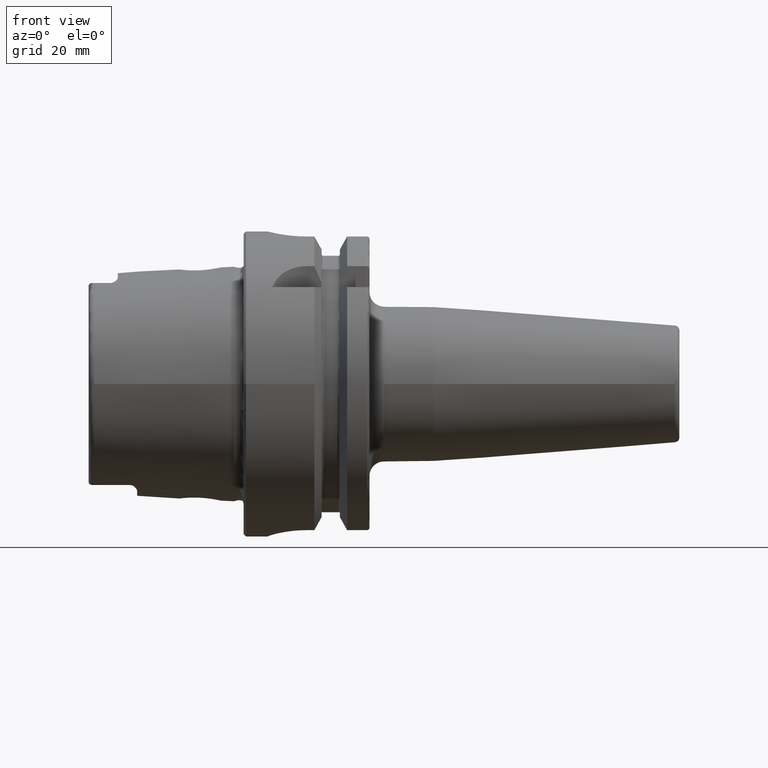
[diagram: clean part render]
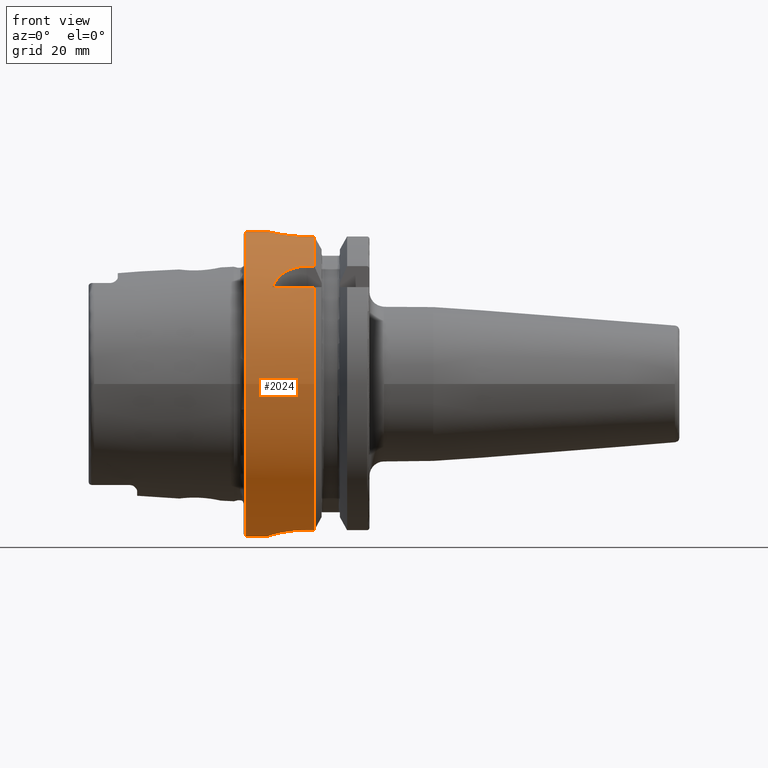
[diagram: same view with one face highlighted and labeled with its STEP entity id]
A machine part, front view. The second image highlights one B-rep face of the part: STEP entity #2024.
In plain terms, the highlighted cylindrical surface (bore or boss wall) has radius 31.5 mm, axis along (1, 0, 0).
Its self-contained STEP definition (entity closure, byte-faithful):
#57=B_SPLINE_CURVE_WITH_KNOTS('',3,(#3738,#3739,#3740,#3741,#3742,#3743,
#3744,#3745,#3746,#3747,#3748,#3749,#3750,#3751,#3752,#3753,#3754,#3755,
#3756,#3757,#3758,#3759,#3760,#3761,#3762,#3763),.UNSPECIFIED.,.F.,.F.,
(4,2,2,2,2,2,2,2,2,2,2,2,4),(0.,0.188688694287612,0.377377388575223,0.56606194688798,
0.754746505200737,0.943431063513494,1.13211562182625,1.32080431611386,1.50949301040147,
1.69818170468909,1.8868703989767,2.07555495728945,2.26423951560221),
 .UNSPECIFIED.);
#58=B_SPLINE_CURVE_WITH_KNOTS('',3,(#3764,#3765,#3766,#3767,#3768,#3769,
#3770,#3771,#3772,#3773),.UNSPECIFIED.,.F.,.F.,(4,2,2,2,4),(2.26423951560221,
2.45292407391497,2.64160863222773,2.83029732651534,3.01898602080295),
 .UNSPECIFIED.);
#61=B_SPLINE_CURVE_WITH_KNOTS('',3,(#3830,#3831,#3832,#3833,#3834,#3835,
#3836,#3837,#3838,#3839,#3840,#3841),.UNSPECIFIED.,.F.,.F.,(4,2,2,2,2,4),
(1.1085154204615,1.31979218709236,1.52798350480179,1.73617482251122,1.90421770126337,
2.07226058001552),.UNSPECIFIED.);
#71=B_SPLINE_CURVE_WITH_KNOTS('',3,(#4010,#4011,#4012,#4013,#4014,#4015,
#4016,#4017,#4018,#4019),.UNSPECIFIED.,.F.,.F.,(4,2,2,2,4),(1.20927420824097,
1.5131742975437,1.81707438684643,2.12000449915965,2.42293461147287),
 .UNSPECIFIED.);
#74=B_SPLINE_CURVE_WITH_KNOTS('',3,(#4045,#4046,#4047,#4048,#4049,#4050,
#4051,#4052,#4053,#4054),.UNSPECIFIED.,.F.,.F.,(4,2,2,2,4),(0.,0.30293011231322,
0.605860224626439,0.90976031392917,1.2136604032319),.UNSPECIFIED.);
#84=B_SPLINE_CURVE_WITH_KNOTS('',3,(#4200,#4201,#4202,#4203,#4204,#4205,
#4206,#4207,#4208,#4209,#4210,#4211,#4212,#4213,#4214,#4215,#4216,#4217),
 .UNSPECIFIED.,.F.,.F.,(4,2,2,2,2,2,2,2,4),(0.,0.302805879979318,0.605611759958635,
0.908372461246501,1.21113316253437,1.51389386382223,1.8166545651101,2.11946044508942,
2.42226632506874),.UNSPECIFIED.);
#183=LINE('',#3805,#289);
#188=LINE('',#3850,#294);
#206=LINE('',#4027,#312);
#207=LINE('',#4031,#313);
#219=LINE('',#4194,#325);
#222=LINE('',#4224,#328);
#224=LINE('',#4230,#330);
#289=VECTOR('',#2580,10.);
#294=VECTOR('',#2591,10.);
#312=VECTOR('',#2655,10.);
#313=VECTOR('',#2658,10.);
#325=VECTOR('',#2736,10.);
#328=VECTOR('',#2747,10.);
#330=VECTOR('',#2755,31.5);
#369=CYLINDRICAL_SURFACE('',#2249,31.5);
#389=FACE_BOUND('',#598,.T.);
#471=FACE_OUTER_BOUND('',#597,.T.);
#597=EDGE_LOOP('',(#1699,#1700,#1701,#1702,#1703,#1704,#1705,#1706,#1707,
#1708,#1709,#1710,#1711,#1712,#1713,#1714,#1715,#1716));
#598=EDGE_LOOP('',(#1717,#1718));
#697=CIRCLE('',#2192,31.5);
#698=CIRCLE('',#2193,31.5);
#706=CIRCLE('',#2213,31.5);
#707=CIRCLE('',#2215,31.5);
#721=CIRCLE('',#2250,31.5);
#722=CIRCLE('',#2251,31.5);
#866=VERTEX_POINT('',#3735);
#867=VERTEX_POINT('',#3737);
#875=VERTEX_POINT('',#3802);
#876=VERTEX_POINT('',#3804);
#880=VERTEX_POINT('',#3829);
#882=VERTEX_POINT('',#3846);
#887=VERTEX_POINT('',#3862);
#888=VERTEX_POINT('',#3864);
#913=VERTEX_POINT('',#4008);
#914=VERTEX_POINT('',#4009);
#915=VERTEX_POINT('',#4029);
#916=VERTEX_POINT('',#4030);
#919=VERTEX_POINT('',#4044);
#920=VERTEX_POINT('',#4059);
#936=VERTEX_POINT('',#4191);
#937=VERTEX_POINT('',#4193);
#938=VERTEX_POINT('',#4199);
#940=VERTEX_POINT('',#4229);
#1100=EDGE_CURVE('',#867,#866,#57,.T.);
#1101=EDGE_CURVE('',#866,#867,#58,.T.);
#1110=EDGE_CURVE('',#876,#875,#183,.T.);
#1116=EDGE_CURVE('',#875,#880,#61,.T.);
#1120=EDGE_CURVE('',#880,#882,#188,.T.);
#1126=EDGE_CURVE('',#876,#887,#697,.T.);
#1127=EDGE_CURVE('',#887,#888,#698,.T.);
#1161=EDGE_CURVE('',#913,#914,#71,.T.);
#1165=EDGE_CURVE('',#914,#888,#206,.T.);
#1166=EDGE_CURVE('',#915,#916,#207,.T.);
#1171=EDGE_CURVE('',#916,#919,#74,.T.);
#1173=EDGE_CURVE('',#919,#913,#706,.T.);
#1174=EDGE_CURVE('',#915,#920,#707,.T.);
#1206=EDGE_CURVE('',#937,#936,#219,.T.);
#1208=EDGE_CURVE('',#936,#938,#84,.T.);
#1212=EDGE_CURVE('',#938,#920,#222,.T.);
#1214=EDGE_CURVE('',#937,#882,#721,.T.);
#1215=EDGE_CURVE('',#887,#940,#224,.T.);
#1216=EDGE_CURVE('',#940,#940,#722,.T.);
#1699=ORIENTED_EDGE('',*,*,#1120,.T.);
#1700=ORIENTED_EDGE('',*,*,#1214,.F.);
#1701=ORIENTED_EDGE('',*,*,#1206,.T.);
#1702=ORIENTED_EDGE('',*,*,#1208,.T.);
#1703=ORIENTED_EDGE('',*,*,#1212,.T.);
#1704=ORIENTED_EDGE('',*,*,#1174,.F.);
#1705=ORIENTED_EDGE('',*,*,#1166,.T.);
#1706=ORIENTED_EDGE('',*,*,#1171,.T.);
#1707=ORIENTED_EDGE('',*,*,#1173,.T.);
#1708=ORIENTED_EDGE('',*,*,#1161,.T.);
#1709=ORIENTED_EDGE('',*,*,#1165,.T.);
#1710=ORIENTED_EDGE('',*,*,#1127,.F.);
#1711=ORIENTED_EDGE('',*,*,#1215,.T.);
#1712=ORIENTED_EDGE('',*,*,#1216,.T.);
#1713=ORIENTED_EDGE('',*,*,#1215,.F.);
#1714=ORIENTED_EDGE('',*,*,#1126,.F.);
#1715=ORIENTED_EDGE('',*,*,#1110,.T.);
#1716=ORIENTED_EDGE('',*,*,#1116,.T.);
#1717=ORIENTED_EDGE('',*,*,#1100,.T.);
#1718=ORIENTED_EDGE('',*,*,#1101,.T.);
#2024=ADVANCED_FACE('',(#471,#389),#369,.T.);
#2192=AXIS2_PLACEMENT_3D('',#3863,#2604,#2605);
#2193=AXIS2_PLACEMENT_3D('',#3865,#2606,#2607);
#2213=AXIS2_PLACEMENT_3D('',#4057,#2666,#2667);
#2215=AXIS2_PLACEMENT_3D('',#4060,#2670,#2671);
#2249=AXIS2_PLACEMENT_3D('',#4227,#2751,#2752);
#2250=AXIS2_PLACEMENT_3D('',#4228,#2753,#2754);
#2251=AXIS2_PLACEMENT_3D('',#4231,#2756,#2757);
#2580=DIRECTION('',(-1.,0.,0.));
#2591=DIRECTION('',(1.,0.,0.));
#2604=DIRECTION('center_axis',(1.,0.,0.));
#2605=DIRECTION('ref_axis',(0.,0.,-1.));
#2606=DIRECTION('center_axis',(1.,0.,0.));
#2607=DIRECTION('ref_axis',(0.,0.,-1.));
#2655=DIRECTION('',(1.,0.,0.));
#2658=DIRECTION('',(-1.,0.,0.));
#2666=DIRECTION('center_axis',(-1.,0.,0.));
#2667=DIRECTION('ref_axis',(0.,1.,0.));
#2670=DIRECTION('center_axis',(1.,0.,0.));
#2671=DIRECTION('ref_axis',(0.,0.,-1.));
#2736=DIRECTION('',(-1.,0.,0.));
#2747=DIRECTION('',(1.,0.,0.));
#2751=DIRECTION('center_axis',(1.,0.,0.));
#2752=DIRECTION('ref_axis',(0.,1.,0.));
#2753=DIRECTION('center_axis',(1.,0.,0.));
#2754=DIRECTION('ref_axis',(0.,0.,-1.));
#2755=DIRECTION('',(-1.,0.,0.));
#2756=DIRECTION('center_axis',(1.,0.,0.));
#2757=DIRECTION('ref_axis',(0.,0.,-1.));
#3735=CARTESIAN_POINT('',(12.,31.5,-6.12323399573677E-16));
#3737=CARTESIAN_POINT('',(7.,31.100643080168,5.));
#3738=CARTESIAN_POINT('Ctrl Pts',(7.,31.100643080168,5.));
#3739=CARTESIAN_POINT('Ctrl Pts',(6.37103768570796,31.100643080168,5.));
#3740=CARTESIAN_POINT('Ctrl Pts',(5.70089281579202,31.1216953112949,4.87408354368814));
#3741=CARTESIAN_POINT('Ctrl Pts',(4.46931934300962,31.1973810209855,4.36348784122736));
#3742=CARTESIAN_POINT('Ctrl Pts',(3.90779781350673,31.2508828501623,3.97886562537221));
#3743=CARTESIAN_POINT('Ctrl Pts',(3.021144092268,31.3510329557602,3.09221190413348));
#3744=CARTESIAN_POINT('Ctrl Pts',(2.63651425348544,31.4042391414288,2.5306861925578));
#3745=CARTESIAN_POINT('Ctrl Pts',(2.12591301120586,31.4792463697936,1.29909839144709));
#3746=CARTESIAN_POINT('Ctrl Pts',(2.,31.5,0.62894852770919));
#3747=CARTESIAN_POINT('Ctrl Pts',(2.,31.5,-0.62894852770919));
#3748=CARTESIAN_POINT('Ctrl Pts',(2.12591301120586,31.4792463697936,-1.29909839144709));
#3749=CARTESIAN_POINT('Ctrl Pts',(2.63651425348544,31.4042391414288,-2.5306861925578));
#3750=CARTESIAN_POINT('Ctrl Pts',(3.021144092268,31.3510329557602,-3.09221190413348));
#3751=CARTESIAN_POINT('Ctrl Pts',(3.90779781350673,31.2508828501623,-3.97886562537221));
#3752=CARTESIAN_POINT('Ctrl Pts',(4.46931934300962,31.1973810209855,-4.36348784122736));
#3753=CARTESIAN_POINT('Ctrl Pts',(5.70089281579202,31.1216953112949,-4.87408354368814));
#3754=CARTESIAN_POINT('Ctrl Pts',(6.37103768570796,31.100643080168,-5.));
#3755=CARTESIAN_POINT('Ctrl Pts',(7.62896231429204,31.100643080168,-5.));
#3756=CARTESIAN_POINT('Ctrl Pts',(8.29910718420798,31.1216953112949,-4.87408354368814));
#3757=CARTESIAN_POINT('Ctrl Pts',(9.53068065699038,31.1973810209855,-4.36348784122736));
#3758=CARTESIAN_POINT('Ctrl Pts',(10.0922021864933,31.2508828501623,-3.97886562537221));
#3759=CARTESIAN_POINT('Ctrl Pts',(10.978855907732,31.3510329557602,-3.09221190413348));
#3760=CARTESIAN_POINT('Ctrl Pts',(11.3634857465146,31.4042391414288,-2.53068619255779));
#3761=CARTESIAN_POINT('Ctrl Pts',(11.8740869887941,31.4792463697936,-1.29909839144708));
#3762=CARTESIAN_POINT('Ctrl Pts',(12.,31.5,-0.62894852770919));
#3763=CARTESIAN_POINT('Ctrl Pts',(12.,31.5,-4.16333634234434E-16));
#3764=CARTESIAN_POINT('Ctrl Pts',(12.,31.5,-1.11022302462516E-15));
#3765=CARTESIAN_POINT('Ctrl Pts',(12.,31.5,0.628948527709188));
#3766=CARTESIAN_POINT('Ctrl Pts',(11.8740869887941,31.4792463697936,1.29909839144708));
#3767=CARTESIAN_POINT('Ctrl Pts',(11.3634857465146,31.4042391414288,2.53068619255779));
#3768=CARTESIAN_POINT('Ctrl Pts',(10.978855907732,31.3510329557602,3.09221190413348));
#3769=CARTESIAN_POINT('Ctrl Pts',(10.0922021864933,31.2508828501623,3.97886562537221));
#3770=CARTESIAN_POINT('Ctrl Pts',(9.53068065699038,31.1973810209855,4.36348784122736));
#3771=CARTESIAN_POINT('Ctrl Pts',(8.29910718420798,31.1216953112949,4.87408354368814));
#3772=CARTESIAN_POINT('Ctrl Pts',(7.62896231429204,31.100643080168,5.));
#3773=CARTESIAN_POINT('Ctrl Pts',(7.,31.100643080168,5.));
#3802=CARTESIAN_POINT('',(5.88828609634419,-24.3361870472759,20.));
#3804=CARTESIAN_POINT('',(14.6225009252407,-24.3361870472759,20.));
#3805=CARTESIAN_POINT('',(7.56125046262034,-24.3361870472759,20.));
#3829=CARTESIAN_POINT('',(13.,-20.,24.3361870472759));
#3830=CARTESIAN_POINT('Ctrl Pts',(5.88828609634419,-24.3361870472759,20.));
#3831=CARTESIAN_POINT('Ctrl Pts',(6.11069532820048,-23.9044753723342,20.5253108035937));
#3832=CARTESIAN_POINT('Ctrl Pts',(6.38325999044306,-23.4713523250807,21.0173865932788));
#3833=CARTESIAN_POINT('Ctrl Pts',(7.044898076458,-22.6317364276543,21.9186738868096));
#3834=CARTESIAN_POINT('Ctrl Pts',(7.46714468561685,-22.1861072682036,22.3682920878559));
#3835=CARTESIAN_POINT('Ctrl Pts',(8.46725531403812,-21.3767026700071,23.143042657319));
#3836=CARTESIAN_POINT('Ctrl Pts',(9.04646427720221,-21.0147449478223,23.4683362269255));
#3837=CARTESIAN_POINT('Ctrl Pts',(10.1145001432702,-20.5200081116516,23.9011603796022));
#3838=CARTESIAN_POINT('Ctrl Pts',(10.670823971716,-20.3234249831704,24.0673462447194));
#3839=CARTESIAN_POINT('Ctrl Pts',(11.8334528721306,-20.063121855676,24.2847667849476));
#3840=CARTESIAN_POINT('Ctrl Pts',(12.4398570708262,-20.,24.3361870472759));
#3841=CARTESIAN_POINT('Ctrl Pts',(13.,-20.,24.3361870472759));
#3846=CARTESIAN_POINT('',(14.6225009252407,-20.,24.3361870472759));
#3850=CARTESIAN_POINT('',(7.56125046262035,-20.,24.3361870472759));
#3862=CARTESIAN_POINT('',(14.6225009252407,-31.5,-3.85763741731416E-15));
#3863=CARTESIAN_POINT('Origin',(14.6225009252407,0.,0.));
#3864=CARTESIAN_POINT('',(14.6225009252407,-9.,-30.1869176962472));
#3865=CARTESIAN_POINT('Origin',(14.6225009252407,0.,0.));
#4008=CARTESIAN_POINT('',(5.,-0.999999999999999,-31.4841229828623));
#4009=CARTESIAN_POINT('',(13.,-9.,-30.1869176962472));
#4010=CARTESIAN_POINT('Ctrl Pts',(5.,-0.999999999999997,-31.4841229828623));
#4011=CARTESIAN_POINT('Ctrl Pts',(5.,-2.01248971281587,-31.4519642432536));
#4012=CARTESIAN_POINT('Ctrl Pts',(5.2037733306458,-3.08756640398171,-31.3640631381934));
#4013=CARTESIAN_POINT('Ctrl Pts',(6.02370102555041,-5.05836608044729,-31.1070804719497));
#4014=CARTESIAN_POINT('Ctrl Pts',(6.63955745341061,-5.95454409907418,-30.9405445582004));
#4015=CARTESIAN_POINT('Ctrl Pts',(8.05472493283182,-7.36715009628369,-30.6348764237341));
#4016=CARTESIAN_POINT('Ctrl Pts',(8.9496642215883,-7.98063403850821,-30.4752177477269));
#4017=CARTESIAN_POINT('Ctrl Pts',(10.9171740660538,-8.79719825889174,-30.2496070227108));
#4018=CARTESIAN_POINT('Ctrl Pts',(11.9902329589559,-9.,-30.1869176962472));
#4019=CARTESIAN_POINT('Ctrl Pts',(13.,-9.,-30.1869176962472));
#4027=CARTESIAN_POINT('',(7.56125046262035,-8.99999999999999,-30.1869176962472));
#4029=CARTESIAN_POINT('',(14.6225009252407,9.,-30.1869176962472));
#4030=CARTESIAN_POINT('',(13.,9.00000000000001,-30.1869176962472));
#4031=CARTESIAN_POINT('',(7.56125046262034,9.00000000000001,-30.1869176962472));
#4044=CARTESIAN_POINT('',(5.,1.,-31.4841229828623));
#4045=CARTESIAN_POINT('Ctrl Pts',(13.,9.00000000000001,-30.1869176962472));
#4046=CARTESIAN_POINT('Ctrl Pts',(11.9902329589559,9.00000000000001,-30.1869176962472));
#4047=CARTESIAN_POINT('Ctrl Pts',(10.9171740660538,8.79719825889175,-30.2496070227108));
#4048=CARTESIAN_POINT('Ctrl Pts',(8.9496642215883,7.98063403850822,-30.4752177477269));
#4049=CARTESIAN_POINT('Ctrl Pts',(8.05472493283182,7.3671500962837,-30.6348764237341));
#4050=CARTESIAN_POINT('Ctrl Pts',(6.63955745341061,5.95454409907419,-30.9405445582004));
#4051=CARTESIAN_POINT('Ctrl Pts',(6.02370102555041,5.0583660804473,-31.1070804719497));
#4052=CARTESIAN_POINT('Ctrl Pts',(5.2037733306458,3.08756640398172,-31.3640631381934));
#4053=CARTESIAN_POINT('Ctrl Pts',(5.,2.01248971281588,-31.4519642432536));
#4054=CARTESIAN_POINT('Ctrl Pts',(5.,1.00000000000001,-31.4841229828623));
#4057=CARTESIAN_POINT('Origin',(5.,0.,0.));
#4059=CARTESIAN_POINT('',(14.6225009252407,8.,30.4671954731642));
#4060=CARTESIAN_POINT('Origin',(14.6225009252407,0.,0.));
#4191=CARTESIAN_POINT('',(13.,-8.,30.4671954731642));
#4193=CARTESIAN_POINT('',(14.6225009252407,-8.,30.4671954731642));
#4194=CARTESIAN_POINT('',(7.56125046262034,-8.,30.4671954731642));
#4199=CARTESIAN_POINT('',(13.,8.,30.4671954731642));
#4200=CARTESIAN_POINT('Ctrl Pts',(13.,-8.,30.4671954731643));
#4201=CARTESIAN_POINT('Ctrl Pts',(11.9906470667356,-8.,30.4671954731643));
#4202=CARTESIAN_POINT('Ctrl Pts',(10.9172075930168,-7.79737202490167,30.5225803085525));
#4203=CARTESIAN_POINT('Ctrl Pts',(8.94758399331801,-6.97961067526075,30.719895002943));
#4204=CARTESIAN_POINT('Ctrl Pts',(8.05099322370438,-6.36470172268915,30.8586830127239));
#4205=CARTESIAN_POINT('Ctrl Pts',(6.63540388828045,-4.94911238726521,31.1170994373341));
#4206=CARTESIAN_POINT('Ctrl Pts',(6.02041263015313,-4.05247770930662,31.2539072689014));
#4207=CARTESIAN_POINT('Ctrl Pts',(5.20259114887399,-2.08269813865027,31.4466478906396));
#4208=CARTESIAN_POINT('Ctrl Pts',(5.,-1.00920233762622,31.5));
#4209=CARTESIAN_POINT('Ctrl Pts',(5.,1.00920233762622,31.5));
#4210=CARTESIAN_POINT('Ctrl Pts',(5.20259114887399,2.08269813865027,31.4466478906396));
#4211=CARTESIAN_POINT('Ctrl Pts',(6.02041263015313,4.05247770930662,31.2539072689014));
#4212=CARTESIAN_POINT('Ctrl Pts',(6.63540388828045,4.94911238726521,31.1170994373341));
#4213=CARTESIAN_POINT('Ctrl Pts',(8.05099322370439,6.36470172268915,30.8586830127239));
#4214=CARTESIAN_POINT('Ctrl Pts',(8.94758399331801,6.97961067526075,30.719895002943));
#4215=CARTESIAN_POINT('Ctrl Pts',(10.9172075930168,7.79737202490167,30.5225803085525));
#4216=CARTESIAN_POINT('Ctrl Pts',(11.9906470667356,8.,30.4671954731643));
#4217=CARTESIAN_POINT('Ctrl Pts',(13.,8.,30.4671954731643));
#4224=CARTESIAN_POINT('',(7.56125046262035,8.,30.4671954731642));
#4227=CARTESIAN_POINT('Origin',(7.56125046262034,0.,0.));
#4228=CARTESIAN_POINT('Origin',(14.6225009252407,0.,0.));
#4229=CARTESIAN_POINT('',(0.5,-31.5,-3.85763741731416E-15));
#4230=CARTESIAN_POINT('',(7.56125046262034,-31.5,-3.85763741731416E-15));
#4231=CARTESIAN_POINT('Origin',(0.5,0.,0.));